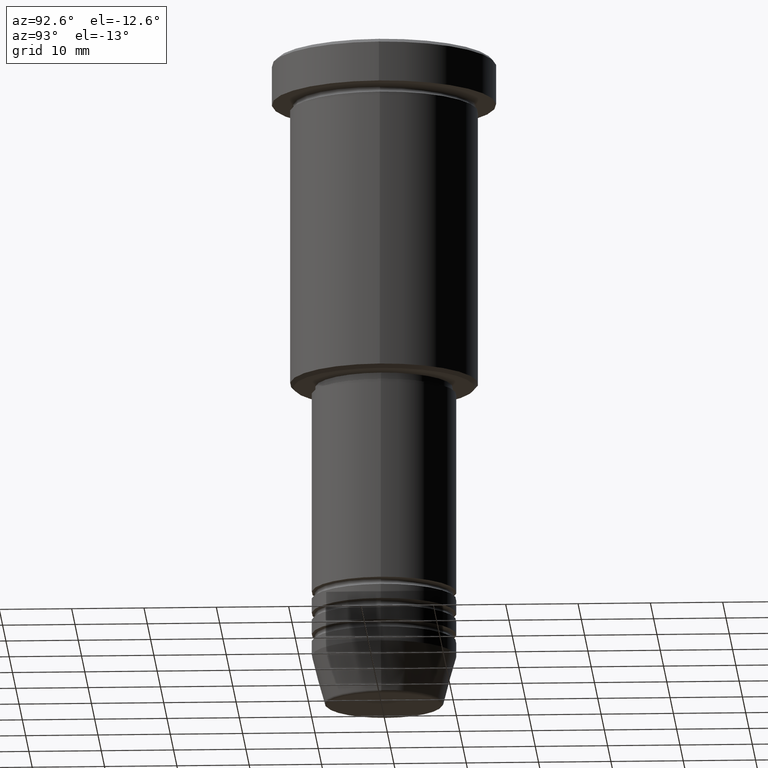
[diagram: clean part render]
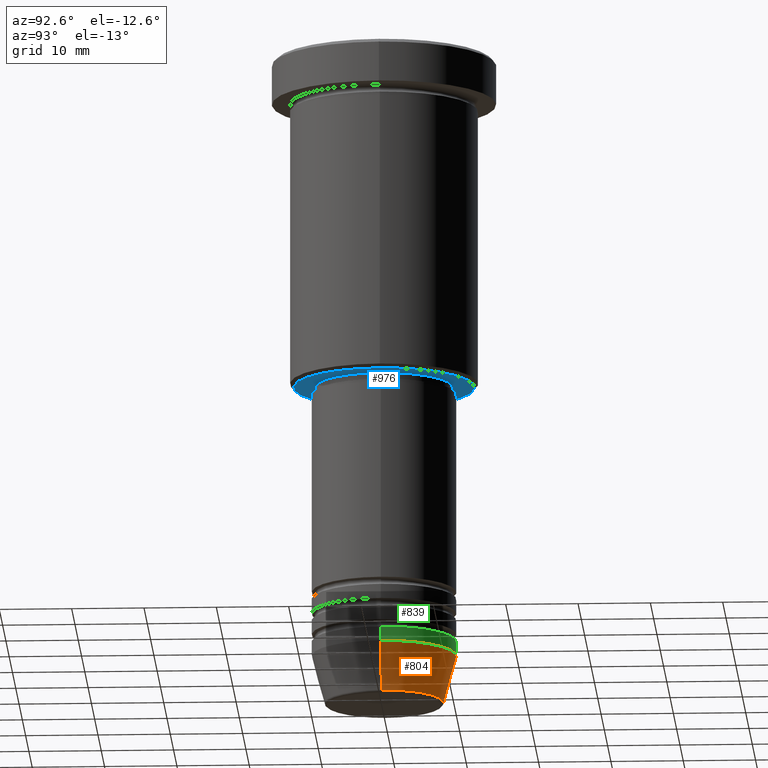
[diagram: same view with three faces highlighted in distinct colors, each labeled with its STEP entity id]
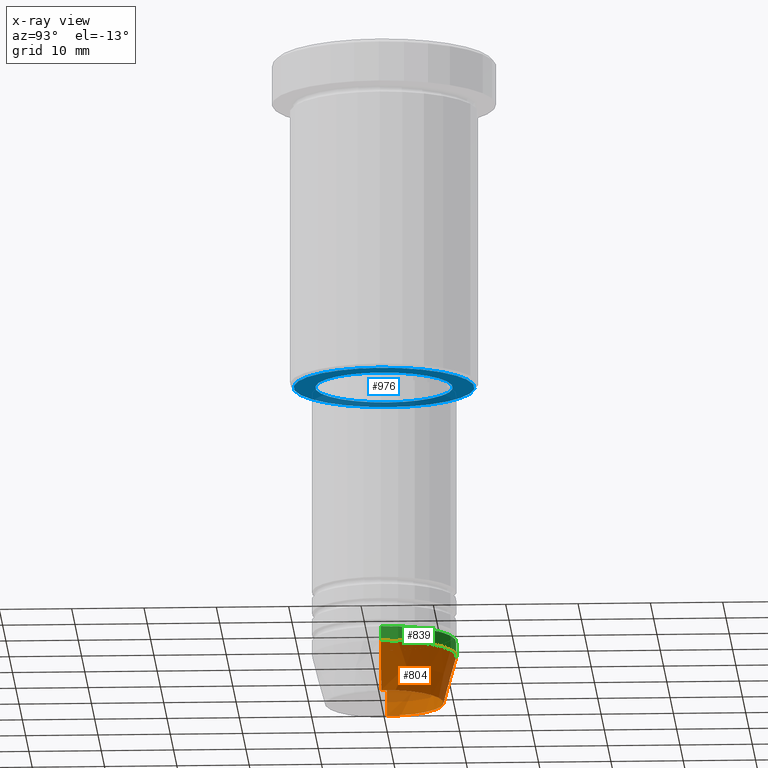
[diagram: x-ray of the same camera — body ghosted, the three highlighted faces saturated]
A machine part, auxiliary view with three faces highlighted in distinct colors.
The next image is the same camera in x-ray (body ghosted, the three faces saturated) — at least one of them is partly hidden behind the body in this view.
Their STEP definitions:

[orange] entity #804 — the highlighted conical surface has half-angle 15 deg.
#40 = ORIENTED_EDGE ( 'NONE', *, *, #815, .T. ) ;
#77 = VERTEX_POINT ( 'NONE', #299 ) ;
#104 = ORIENTED_EDGE ( 'NONE', *, *, #1148, .T. ) ;
#209 = DIRECTION ( 'NONE',  ( 0.2588190451025213501, 0.000000000000000000, 0.9659258262890680902 ) ) ;
#258 = DIRECTION ( 'NONE',  ( -0.000000000000000000, -0.000000000000000000, 1.000000000000000000 ) ) ;
#269 = DIRECTION ( 'NONE',  ( 1.000000000000000000, 0.000000000000000000, 0.000000000000000000 ) ) ;
#299 = CARTESIAN_POINT ( 'NONE',  ( -10.00000000000000000, 1.224646799147353256E-15, -83.99999999999998579 ) ) ;
#311 = LINE ( 'NONE', #569, #1038 ) ;
#367 = VERTEX_POINT ( 'NONE', #1163 ) ;
#447 = ORIENTED_EDGE ( 'NONE', *, *, #552, .F. ) ;
#486 = AXIS2_PLACEMENT_3D ( 'NONE', #1168, #550, #269 ) ;
#509 = CONICAL_SURFACE ( 'NONE', #1077, 10.00000000000000000, 0.2617993877991500740 ) ;
#532 = EDGE_LOOP ( 'NONE', ( #40, #104, #872, #447 ) ) ;
#534 = DIRECTION ( 'NONE',  ( 1.000000000000000000, 0.000000000000000000, 0.000000000000000000 ) ) ;
#538 = CARTESIAN_POINT ( 'NONE',  ( 0.000000000000000000, 0.000000000000000000, -90.62940952255125637 ) ) ;
#550 = DIRECTION ( 'NONE',  ( -0.000000000000000000, -0.000000000000000000, 1.000000000000000000 ) ) ;
#552 = EDGE_CURVE ( 'NONE', #1048, #367, #311, .T. ) ;
#569 = CARTESIAN_POINT ( 'NONE',  ( 10.00000000000000000, 0.000000000000000000, -83.99999999999998579 ) ) ;
#603 = DIRECTION ( 'NONE',  ( -0.2588190451025213501, 3.169619151431772337E-17, 0.9659258262890680902 ) ) ;
#615 = CARTESIAN_POINT ( 'NONE',  ( 0.000000000000000000, 0.000000000000000000, -83.99999999999998579 ) ) ;
#675 = CIRCLE ( 'NONE', #486, 10.00000000000000000 ) ;
#692 = EDGE_CURVE ( 'NONE', #367, #77, #675, .T. ) ;
#711 = AXIS2_PLACEMENT_3D ( 'NONE', #538, #880, #534 ) ;
#804 = ADVANCED_FACE ( 'NONE', ( #1076 ), #509, .T. ) ;
#815 = EDGE_CURVE ( 'NONE', #1048, #1039, #955, .T. ) ;
#822 = VECTOR ( 'NONE', #603, 1000.000000000000000 ) ;
#862 = CARTESIAN_POINT ( 'NONE',  ( -10.00000000000000000, 1.224646799147353256E-15, -83.99999999999998579 ) ) ;
#872 = ORIENTED_EDGE ( 'NONE', *, *, #692, .F. ) ;
#880 = DIRECTION ( 'NONE',  ( -0.000000000000000000, -0.000000000000000000, 1.000000000000000000 ) ) ;
#949 = CARTESIAN_POINT ( 'NONE',  ( 8.223655072137187716, 0.000000000000000000, -90.62940952255125637 ) ) ;
#955 = CIRCLE ( 'NONE', #711, 8.223655072137187716 ) ;
#988 = CARTESIAN_POINT ( 'NONE',  ( -8.223655072137187716, 1.115877042642911856E-15, -90.62940952255125637 ) ) ;
#1038 = VECTOR ( 'NONE', #209, 1000.000000000000000 ) ;
#1039 = VERTEX_POINT ( 'NONE', #988 ) ;
#1048 = VERTEX_POINT ( 'NONE', #949 ) ;
#1076 = FACE_OUTER_BOUND ( 'NONE', #532, .T. ) ;
#1077 = AXIS2_PLACEMENT_3D ( 'NONE', #615, #258, #1088 ) ;
#1088 = DIRECTION ( 'NONE',  ( 1.000000000000000000, 0.000000000000000000, 0.000000000000000000 ) ) ;
#1132 = LINE ( 'NONE', #862, #822 ) ;
#1148 = EDGE_CURVE ( 'NONE', #1039, #77, #1132, .T. ) ;
#1163 = CARTESIAN_POINT ( 'NONE',  ( 10.00000000000000000, 0.000000000000000000, -83.99999999999998579 ) ) ;
#1168 = CARTESIAN_POINT ( 'NONE',  ( 0.000000000000000000, 0.000000000000000000, -83.99999999999998579 ) ) ;

[blue] entity #976 — the highlighted planar face has unit normal (0, 0, -1).
#12 = AXIS2_PLACEMENT_3D ( 'NONE', #890, #268, #1066 ) ;
#29 = CARTESIAN_POINT ( 'NONE',  ( 0.000000000000000000, 0.000000000000000000, -46.00000000000000000 ) ) ;
#55 = AXIS2_PLACEMENT_3D ( 'NONE', #987, #794, #982 ) ;
#68 = VERTEX_POINT ( 'NONE', #444 ) ;
#88 = CIRCLE ( 'NONE', #55, 12.49999999999999112 ) ;
#131 = ORIENTED_EDGE ( 'NONE', *, *, #827, .T. ) ;
#142 = DIRECTION ( 'NONE',  ( 1.000000000000000000, 0.000000000000000000, 0.000000000000000000 ) ) ;
#177 = AXIS2_PLACEMENT_3D ( 'NONE', #29, #1105, #472 ) ;
#180 = DIRECTION ( 'NONE',  ( 0.000000000000000000, 0.000000000000000000, -1.000000000000000000 ) ) ;
#193 = CIRCLE ( 'NONE', #177, 9.500000000000000000 ) ;
#262 = VERTEX_POINT ( 'NONE', #442 ) ;
#268 = DIRECTION ( 'NONE',  ( 0.000000000000000000, 0.000000000000000000, -1.000000000000000000 ) ) ;
#273 = PLANE ( 'NONE',  #407 ) ;
#278 = CIRCLE ( 'NONE', #12, 12.49999999999999112 ) ;
#281 = EDGE_CURVE ( 'NONE', #566, #262, #88, .T. ) ;
#407 = AXIS2_PLACEMENT_3D ( 'NONE', #816, #180, #457 ) ;
#423 = CARTESIAN_POINT ( 'NONE',  ( 0.000000000000000000, 0.000000000000000000, -46.00000000000000000 ) ) ;
#442 = CARTESIAN_POINT ( 'NONE',  ( -12.49999999999999112, 1.561424668912874519E-15, -45.99999999999999289 ) ) ;
#444 = CARTESIAN_POINT ( 'NONE',  ( -9.500000000000000000, 1.163414459189985485E-15, -46.00000000000000000 ) ) ;
#457 = DIRECTION ( 'NONE',  ( -1.000000000000000000, 0.000000000000000000, -0.000000000000000000 ) ) ;
#472 = DIRECTION ( 'NONE',  ( 1.000000000000000000, 0.000000000000000000, 0.000000000000000000 ) ) ;
#561 = EDGE_LOOP ( 'NONE', ( #989, #131 ) ) ;
#566 = VERTEX_POINT ( 'NONE', #836 ) ;
#567 = FACE_BOUND ( 'NONE', #795, .T. ) ;
#577 = CIRCLE ( 'NONE', #676, 9.500000000000000000 ) ;
#592 = DIRECTION ( 'NONE',  ( -0.000000000000000000, -0.000000000000000000, 1.000000000000000000 ) ) ;
#676 = AXIS2_PLACEMENT_3D ( 'NONE', #423, #592, #142 ) ;
#701 = VERTEX_POINT ( 'NONE', #895 ) ;
#775 = ORIENTED_EDGE ( 'NONE', *, *, #1059, .T. ) ;
#794 = DIRECTION ( 'NONE',  ( 0.000000000000000000, 0.000000000000000000, -1.000000000000000000 ) ) ;
#795 = EDGE_LOOP ( 'NONE', ( #775, #940 ) ) ;
#816 = CARTESIAN_POINT ( 'NONE',  ( 0.000000000000000000, 13.00000000000000000, -45.99999999999999289 ) ) ;
#827 = EDGE_CURVE ( 'NONE', #262, #566, #278, .T. ) ;
#830 = FACE_OUTER_BOUND ( 'NONE', #561, .T. ) ;
#836 = CARTESIAN_POINT ( 'NONE',  ( 12.49999999999999112, 0.000000000000000000, -45.99999999999999289 ) ) ;
#877 = EDGE_CURVE ( 'NONE', #68, #701, #193, .T. ) ;
#890 = CARTESIAN_POINT ( 'NONE',  ( 0.000000000000000000, 0.000000000000000000, -45.99999999999999289 ) ) ;
#895 = CARTESIAN_POINT ( 'NONE',  ( 9.500000000000000000, 0.000000000000000000, -46.00000000000000000 ) ) ;
#940 = ORIENTED_EDGE ( 'NONE', *, *, #877, .T. ) ;
#976 = ADVANCED_FACE ( 'NONE', ( #830, #567 ), #273, .T. ) ;
#982 = DIRECTION ( 'NONE',  ( -1.000000000000000000, 0.000000000000000000, 0.000000000000000000 ) ) ;
#987 = CARTESIAN_POINT ( 'NONE',  ( 0.000000000000000000, 0.000000000000000000, -45.99999999999999289 ) ) ;
#989 = ORIENTED_EDGE ( 'NONE', *, *, #281, .T. ) ;
#1059 = EDGE_CURVE ( 'NONE', #701, #68, #577, .T. ) ;
#1066 = DIRECTION ( 'NONE',  ( -1.000000000000000000, 0.000000000000000000, 0.000000000000000000 ) ) ;
#1105 = DIRECTION ( 'NONE',  ( -0.000000000000000000, -0.000000000000000000, 1.000000000000000000 ) ) ;

[green] entity #839 — the highlighted cylindrical surface (partial cylindrical patch) has radius 10 mm, axis along (-0, -0, 1).
#1 = VERTEX_POINT ( 'NONE', #838 ) ;
#8 = ORIENTED_EDGE ( 'NONE', *, *, #325, .F. ) ;
#9 = CARTESIAN_POINT ( 'NONE',  ( 0.000000000000000000, 0.000000000000000000, 0.000000000000000000 ) ) ;
#54 = CARTESIAN_POINT ( 'NONE',  ( -10.00000000000000000, 1.224646799147353256E-15, -81.99999999999998579 ) ) ;
#77 = VERTEX_POINT ( 'NONE', #299 ) ;
#269 = DIRECTION ( 'NONE',  ( 1.000000000000000000, 0.000000000000000000, 0.000000000000000000 ) ) ;
#299 = CARTESIAN_POINT ( 'NONE',  ( -10.00000000000000000, 1.224646799147353256E-15, -83.99999999999998579 ) ) ;
#320 = AXIS2_PLACEMENT_3D ( 'NONE', #9, #907, #738 ) ;
#325 = EDGE_CURVE ( 'NONE', #1, #513, #901, .T. ) ;
#355 = CARTESIAN_POINT ( 'NONE',  ( 0.000000000000000000, 0.000000000000000000, -81.99999999999998579 ) ) ;
#367 = VERTEX_POINT ( 'NONE', #1163 ) ;
#415 = LINE ( 'NONE', #589, #1176 ) ;
#453 = ORIENTED_EDGE ( 'NONE', *, *, #912, .F. ) ;
#486 = AXIS2_PLACEMENT_3D ( 'NONE', #1168, #550, #269 ) ;
#513 = VERTEX_POINT ( 'NONE', #54 ) ;
#550 = DIRECTION ( 'NONE',  ( -0.000000000000000000, -0.000000000000000000, 1.000000000000000000 ) ) ;
#589 = CARTESIAN_POINT ( 'NONE',  ( -10.00000000000000000, 1.224646799147353256E-15, 0.000000000000000000 ) ) ;
#675 = CIRCLE ( 'NONE', #486, 10.00000000000000000 ) ;
#692 = EDGE_CURVE ( 'NONE', #367, #77, #675, .T. ) ;
#712 = DIRECTION ( 'NONE',  ( -0.000000000000000000, -0.000000000000000000, 1.000000000000000000 ) ) ;
#713 = ORIENTED_EDGE ( 'NONE', *, *, #1175, .T. ) ;
#718 = DIRECTION ( 'NONE',  ( -0.000000000000000000, -0.000000000000000000, 1.000000000000000000 ) ) ;
#727 = LINE ( 'NONE', #1092, #1120 ) ;
#738 = DIRECTION ( 'NONE',  ( 1.000000000000000000, 0.000000000000000000, 0.000000000000000000 ) ) ;
#824 = FACE_OUTER_BOUND ( 'NONE', #1035, .T. ) ;
#838 = CARTESIAN_POINT ( 'NONE',  ( 10.00000000000000000, 0.000000000000000000, -81.99999999999998579 ) ) ;
#839 = ADVANCED_FACE ( 'NONE', ( #824 ), #991, .T. ) ;
#855 = ORIENTED_EDGE ( 'NONE', *, *, #692, .T. ) ;
#901 = CIRCLE ( 'NONE', #1103, 10.00000000000000000 ) ;
#907 = DIRECTION ( 'NONE',  ( -0.000000000000000000, -0.000000000000000000, 1.000000000000000000 ) ) ;
#912 = EDGE_CURVE ( 'NONE', #367, #1, #727, .T. ) ;
#991 = CYLINDRICAL_SURFACE ( 'NONE', #320, 10.00000000000000000 ) ;
#1035 = EDGE_LOOP ( 'NONE', ( #855, #713, #8, #453 ) ) ;
#1049 = DIRECTION ( 'NONE',  ( -0.000000000000000000, -0.000000000000000000, 1.000000000000000000 ) ) ;
#1085 = DIRECTION ( 'NONE',  ( 1.000000000000000000, 0.000000000000000000, 0.000000000000000000 ) ) ;
#1092 = CARTESIAN_POINT ( 'NONE',  ( 10.00000000000000000, 0.000000000000000000, 0.000000000000000000 ) ) ;
#1103 = AXIS2_PLACEMENT_3D ( 'NONE', #355, #718, #1085 ) ;
#1120 = VECTOR ( 'NONE', #712, 1000.000000000000000 ) ;
#1163 = CARTESIAN_POINT ( 'NONE',  ( 10.00000000000000000, 0.000000000000000000, -83.99999999999998579 ) ) ;
#1168 = CARTESIAN_POINT ( 'NONE',  ( 0.000000000000000000, 0.000000000000000000, -83.99999999999998579 ) ) ;
#1175 = EDGE_CURVE ( 'NONE', #77, #513, #415, .T. ) ;
#1176 = VECTOR ( 'NONE', #1049, 1000.000000000000000 ) ;